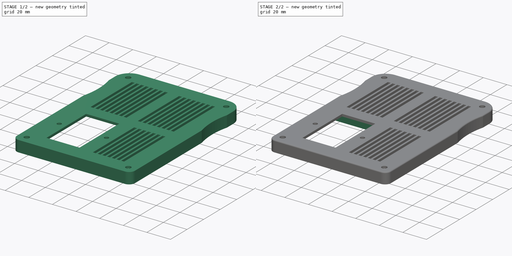
[diagram: build sequence overview — one tinted view per stage of 2, left to right]
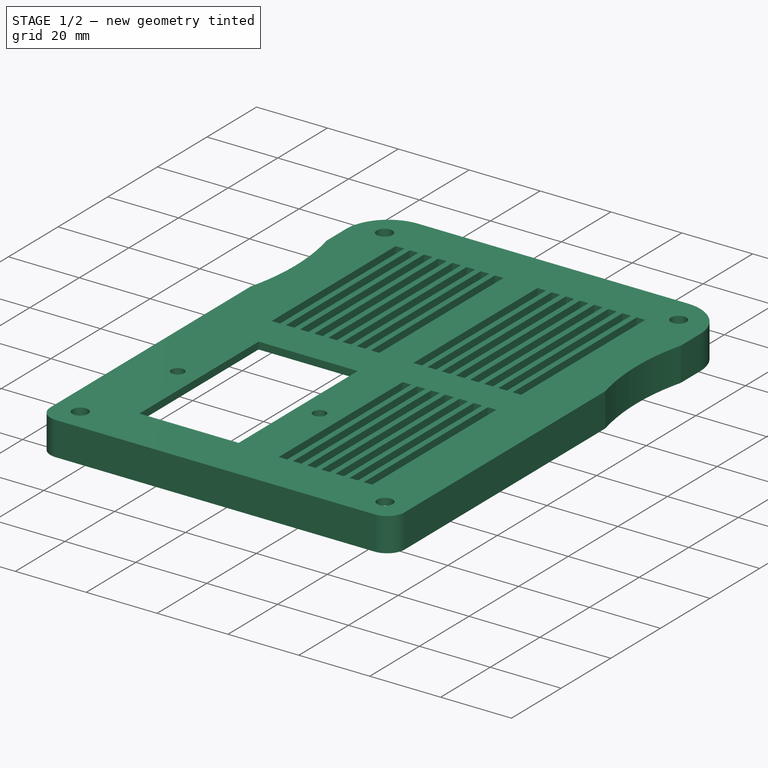
[diagram: stage 1 of 2 — iso view after this stage's code; geometry added in this stage tinted green]
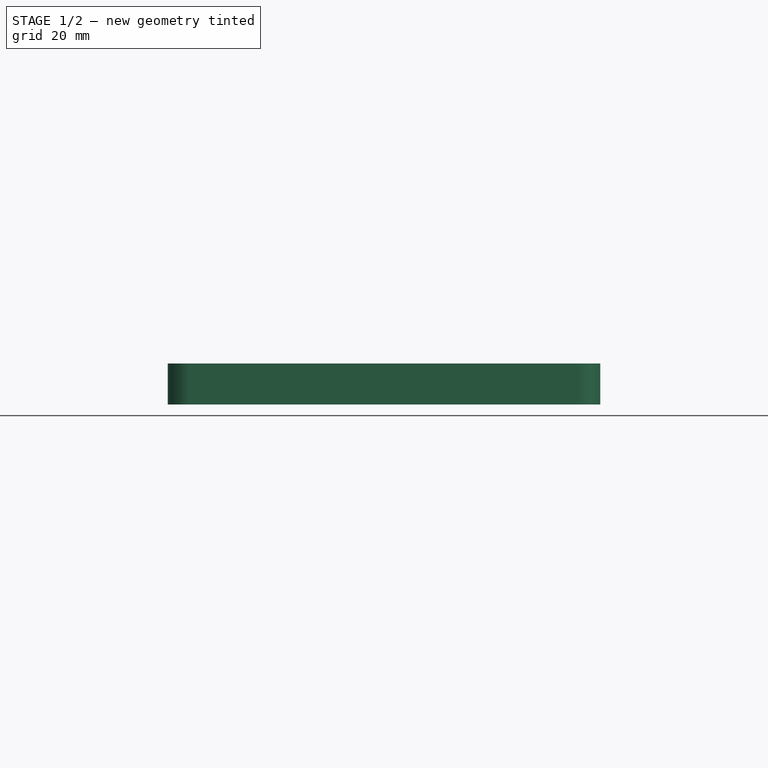
[diagram: stage 1 of 2 — front view after this stage's code; geometry added in this stage tinted green]
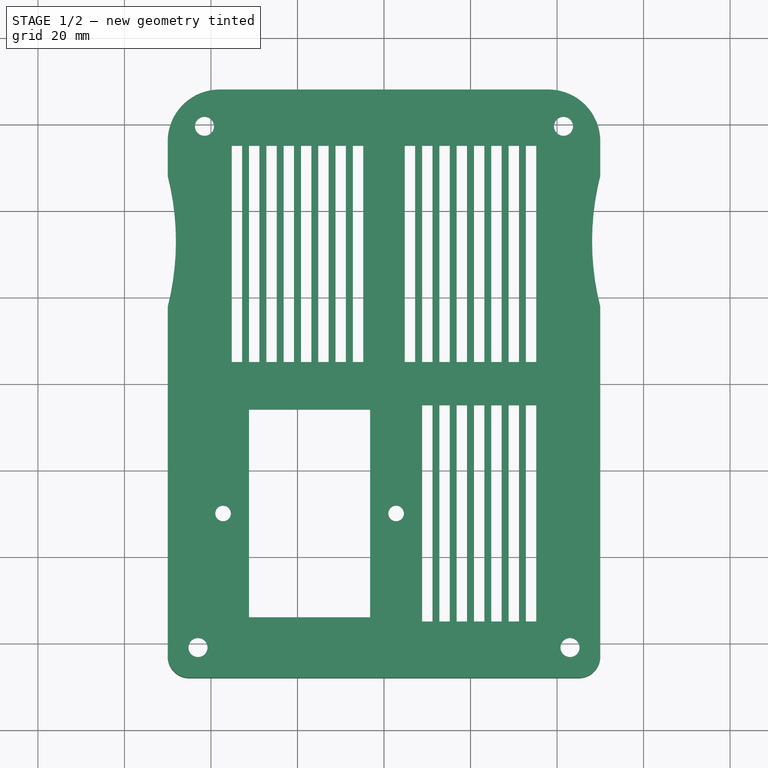
[diagram: stage 1 of 2 — top view after this stage's code; geometry added in this stage tinted green]
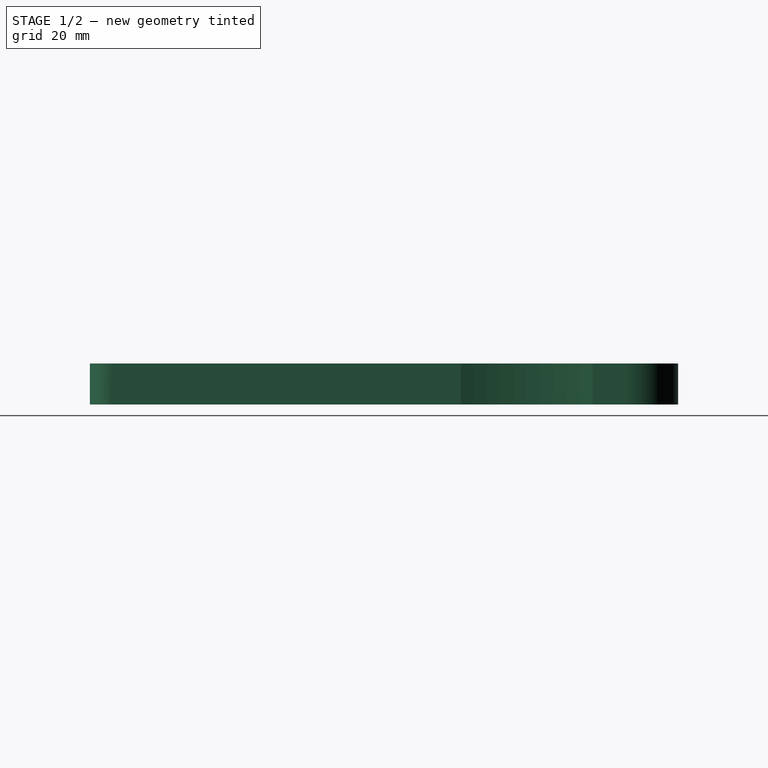
[diagram: stage 1 of 2 — right view after this stage's code; geometry added in this stage tinted green]
FCSTD DOCUMENT  (FreeCAD 0.18.4R)
Label: BakuBack
License: All rights reserved
LicenseURL: http://en.wikipedia.org/wiki/All_rights_reserved
objects: Sketcher::SketchObject×4, PartDesign::Pad×3, PartDesign::Fillet×1, PartDesign::Body×1
note: 12 computed .brp shape members not serialized (recipe doc carries the construction recipe); baked Part::Feature solids carry a one-line shape summary decoded from their .brp

FEATURE [Sketcher::SketchObject] Sketch
  MapMode = 5
  Support = -> [XY_Plane]
  sketch-geometry (66):
    g0: LineSegment StartX=-38 StartY=65 StartZ=0 EndX=38 EndY=65 EndZ=0
    g1: LineSegment StartX=45 StartY=-65 StartZ=0 EndX=-45 EndY=-65 EndZ=0
    g2: LineSegment StartX=-47 StartY=-63 StartZ=0 EndX=-47 EndY=17 EndZ=0
    g3: ArcOfCircle CenterX=-38 CenterY=56 CenterZ=0 NormalX=0 NormalY=0 NormalZ=1 AngleXU=0 Radius=9 StartAngle=1.5708 EndAngle=3.14159
    g4: ArcOfCircle CenterX=38 CenterY=56 CenterZ=0 NormalX=0 NormalY=0 NormalZ=1 AngleXU=0 Radius=9 StartAngle=3e-16 EndAngle=1.5708
    g5: ArcOfCircle CenterX=45 CenterY=-63 CenterZ=0 NormalX=0 NormalY=0 NormalZ=1 AngleXU=0 Radius=2 StartAngle=4.71239 EndAngle=6.28319
    g6: ArcOfCircle CenterX=-45 CenterY=-63 CenterZ=0 NormalX=0 NormalY=0 NormalZ=1 AngleXU=0 Radius=2 StartAngle=3.14159 EndAngle=4.71239
    g7: LineSegment [constr] StartX=-45 StartY=65 StartZ=0 EndX=-45 EndY=-65 EndZ=0
    g8: LineSegment [constr] StartX=45 StartY=65 StartZ=0 EndX=45 EndY=-65 EndZ=0
    g9: LineSegment [constr] StartX=0 StartY=65 StartZ=0 EndX=0 EndY=-65 EndZ=0
    g10: ArcOfCircle CenterX=-110 CenterY=33 CenterZ=0 NormalX=0 NormalY=0 NormalZ=1 AngleXU=0 Radius=65 StartAngle=6.03448 EndAngle=6.5319
    g11: ArcOfCircle CenterX=110 CenterY=33 CenterZ=0 NormalX=0 NormalY=0 NormalZ=1 AngleXU=0 Radius=65 StartAngle=2.89288 EndAngle=3.3903
    g12: LineSegment [constr] StartX=-110 StartY=33 StartZ=0 EndX=110 EndY=33 EndZ=0
    g13: LineSegment StartX=47 StartY=17 StartZ=0 EndX=47 EndY=-63 EndZ=0
    g14: Circle CenterX=-41.5 CenterY=59.5 CenterZ=0 NormalX=0 NormalY=0 NormalZ=1 AngleXU=0 Radius=2.2
    g15: Circle CenterX=41.5 CenterY=59.5 CenterZ=0 NormalX=0 NormalY=0 NormalZ=1 AngleXU=0 Radius=2.2
    g16: LineSegment [constr] StartX=-43 StartY=-61 StartZ=0 EndX=-47 EndY=-61 EndZ=0
    g17: LineSegment [constr] StartX=-43 StartY=-61 StartZ=0 EndX=-43 EndY=-65 EndZ=0
    g18: LineSegment [constr] StartX=-41.5 StartY=59.5 StartZ=0 EndX=-47 EndY=59.5 EndZ=0
    g19: LineSegment [constr] StartX=-41.5 StartY=59.5 StartZ=0 EndX=-41.5 EndY=65 EndZ=0
    g20: LineSegment [constr] StartX=-47 StartY=0 StartZ=0 EndX=47 EndY=0 EndZ=0
    g21: LineSegment StartX=-47 StartY=56 StartZ=0 EndX=-47 EndY=49 EndZ=0
    g22: LineSegment StartX=47 StartY=56 StartZ=0 EndX=47 EndY=49 EndZ=0
    g23: LineSegment [constr] StartX=-47 StartY=49 StartZ=0 EndX=-47 EndY=17 EndZ=0
    g24: LineSegment [constr] StartX=47 StartY=49 StartZ=0 EndX=47 EndY=17 EndZ=0
    g25: Circle CenterX=-43 CenterY=-61 CenterZ=0 NormalX=0 NormalY=0 NormalZ=1 AngleXU=0 Radius=2.2
    g26: Circle CenterX=43 CenterY=-61 CenterZ=0 NormalX=0 NormalY=0 NormalZ=1 AngleXU=0 Radius=2.2
    g27: LineSegment StartX=-110 StartY=33 StartZ=0 EndX=-47 EndY=49 EndZ=0
    g28: LineSegment StartX=-110 StartY=33 StartZ=0 EndX=-47 EndY=17 EndZ=0
    g29: LineSegment StartX=110 StartY=33 StartZ=0 EndX=47 EndY=49 EndZ=0
    g30: LineSegment StartX=110 StartY=33 StartZ=0 EndX=47 EndY=17 EndZ=0
    g31: ArcOfCircle CenterX=-38 CenterY=56 CenterZ=0 NormalX=0 NormalY=0 NormalZ=1 AngleXU=0 Radius=10 StartAngle=1.5708 EndAngle=3.14159
    g32: ArcOfCircle CenterX=38 CenterY=56 CenterZ=0 NormalX=0 NormalY=0 NormalZ=1 AngleXU=0 Radius=10 StartAngle=0 EndAngle=1.5708
    g33: ArcOfCircle CenterX=110 CenterY=33 CenterZ=0 NormalX=0 NormalY=0 NormalZ=1 AngleXU=0 Radius=63.9683 StartAngle=2.89288 EndAngle=3.3903
    g34: ArcOfCircle CenterX=-110 CenterY=33 CenterZ=0 NormalX=0 NormalY=0 NormalZ=1 AngleXU=0 Radius=63.9683 StartAngle=6.03448 EndAngle=6.5319
    g35: ArcOfCircle CenterX=-45 CenterY=-63 CenterZ=0 NormalX=0 NormalY=0 NormalZ=1 AngleXU=0 Radius=3 StartAngle=3.14159 EndAngle=4.71239
    g36: ArcOfCircle CenterX=45 CenterY=-63 CenterZ=0 NormalX=0 NormalY=0 NormalZ=1 AngleXU=0 Radius=3 StartAngle=4.71239 EndAngle=6.28319
    g37: LineSegment StartX=-48 StartY=56 StartZ=0 EndX=-48 EndY=48.746 EndZ=0
    g38: LineSegment StartX=-38 StartY=66 StartZ=0 EndX=38 EndY=66 EndZ=0
    g39: LineSegment StartX=48 StartY=56 StartZ=0 EndX=48 EndY=48.746 EndZ=0
    g40: LineSegment StartX=48 StartY=17.254 StartZ=0 EndX=48 EndY=-63 EndZ=0
    g41: LineSegment StartX=45 StartY=-66 StartZ=0 EndX=27.2361 EndY=-66 EndZ=0
    g42: LineSegment StartX=-48 StartY=17.254 StartZ=0 EndX=-48 EndY=-63 EndZ=0
    g43: ArcOfCircle CenterX=0 CenterY=-64 CenterZ=0 NormalX=0 NormalY=0 NormalZ=1 AngleXU=0 Radius=3 StartAngle=3.87132 EndAngle=5.55346
    g44: LineSegment [constr] StartX=-25 StartY=-64 StartZ=0 EndX=25 EndY=-64 EndZ=0
    g45: ArcOfCircle CenterX=25 CenterY=-64 CenterZ=0 NormalX=0 NormalY=0 NormalZ=1 AngleXU=0 Radius=3 StartAngle=3.87132 EndAngle=5.55346
    g46: ArcOfCircle CenterX=-25 CenterY=-64 CenterZ=0 NormalX=0 NormalY=0 NormalZ=1 AngleXU=0 Radius=3 StartAngle=3.87132 EndAngle=5.55346
    g47: LineSegment [constr] StartX=0 StartY=-67 StartZ=0 EndX=0 EndY=-66 EndZ=0
    g48: LineSegment StartX=-27.2361 StartY=-66 StartZ=0 EndX=-45 EndY=-66 EndZ=0
    g49: LineSegment [constr] StartX=-27.2361 StartY=-66 StartZ=0 EndX=-22.7639 EndY=-66 EndZ=0
    g50: LineSegment StartX=-2.23607 StartY=-66 StartZ=0 EndX=-22.7639 EndY=-66 EndZ=0
    g51: LineSegment [constr] StartX=-2.23607 StartY=-66 StartZ=0 EndX=2.23607 EndY=-66 EndZ=0
    g52: LineSegment StartX=22.7639 StartY=-66 StartZ=0 EndX=2.23607 EndY=-66 EndZ=0
    g53: LineSegment [constr] StartX=22.7639 StartY=-66 StartZ=0 EndX=27.2361 EndY=-66 EndZ=0
    g54: ArcOfCircle CenterX=-38 CenterY=56 CenterZ=0 NormalX=0 NormalY=0 NormalZ=1 AngleXU=0 Radius=12 StartAngle=1.5708 EndAngle=3.14159
    g55: ArcOfCircle CenterX=-110 CenterY=33 CenterZ=0 NormalX=0 NormalY=0 NormalZ=1 AngleXU=0 Radius=61.9048 StartAngle=6.03448 EndAngle=6.5319
    g56: ArcOfCircle CenterX=-45 CenterY=-63 CenterZ=0 NormalX=0 NormalY=0 NormalZ=1 AngleXU=0 Radius=5 StartAngle=3.1416 EndAngle=4.71239
    g57: ArcOfCircle CenterX=45 CenterY=-63 CenterZ=0 NormalX=0 NormalY=0 NormalZ=1 AngleXU=0 Radius=5 StartAngle=4.71239 EndAngle=6.28319
    g58: ArcOfCircle CenterX=110 CenterY=33 CenterZ=0 NormalX=0 NormalY=0 NormalZ=1 AngleXU=0 Radius=61.9048 StartAngle=2.89288 EndAngle=3.3903
    g59: ArcOfCircle CenterX=38 CenterY=56 CenterZ=0 NormalX=0 NormalY=0 NormalZ=1 AngleXU=0 Radius=12 StartAngle=1e-16 EndAngle=1.5708
    g60: LineSegment StartX=-38 StartY=68 StartZ=0 EndX=38 EndY=68 EndZ=0
    g61: LineSegment StartX=-50 StartY=56 StartZ=0 EndX=-50 EndY=48.2381 EndZ=0
    g62: LineSegment StartX=-50 StartY=17.7619 StartZ=0 EndX=-50 EndY=-63 EndZ=0
    g63: LineSegment StartX=-45 StartY=-68 StartZ=0 EndX=45 EndY=-68 EndZ=0
    g64: LineSegment StartX=50 StartY=-63 StartZ=0 EndX=50 EndY=17.7619 EndZ=0
    g65: LineSegment StartX=50 StartY=56 StartZ=0 EndX=50 EndY=48.2381 EndZ=0
  constraints (168):
    c: Horizontal(g0)
    c: Vertical(g2)
    c: Tangent(g0,g3) = 1.5708
    c: Tangent(g0,g4) = 1.5708
    c: Tangent(g1,g5) = 1.5708
    c: Tangent(g1,g6) = 1.5708
    c: Tangent(g2,g6) = 1.5708
    c: Equal(g3,g4)
    c: Equal(g5,g6)
    c: DistanceY(g1,g0) = 130
    c: Radius(g3) = 9
    c: PointOnObject(g7,g0)
    c: PointOnObject(g7,g1)
    c: Vertical(g7)
    c: PointOnObject(g8,g1)
    c: Vertical(g8)
    c: DistanceX(g7,g8) = 90
    c: PointOnObject(g9,g0)
    c: PointOnObject(g9,g1)
    c: Symmetric(g7,g8,g9)
    c: Equal(g11,g10)
    c: Coincident(g12,g10)
    c: Coincident(g12,g11)
    c: Symmetric(g11,g10,g9)
    c: Tangent(g10,g7)
    c: Tangent(g5,g13) = 1.5708
    c: Radius(g10) = 65
    c: DistanceY(g10,g0) = 32
    c: Equal(g14,g15)
    c: Symmetric(g14,g15,g9)
    c: PointOnObject(g16,g2)
    c: Horizontal(g16)
    c: Vertical(g17)
    c: DistanceX(g16,g16) = 4
    c: Equal(g16,g17)
    c: Coincident(g18,g14)
    c: Horizontal(g18)
    c: Coincident(g19,g14)
    c: PointOnObject(g19,g0)
    c: Vertical(g19)
    c: Equal(g18,g19)
    c: DistanceX(g18,g18) = 5.5
    c: Symmetric(g9,g9,g-1)
    c: PointOnObject(g20,g2)
    c: PointOnObject(g20,g13)
    c: Symmetric(g9,g9,g20)
    c: Vertical(g13)
    c: DistanceX(g3,g4) = 94
    c: Vertical(g21)
    c: Vertical(g22)
    c: Coincident(g22,g11)
    c: Coincident(g10,g21)
    c: Coincident(g2,g10)
    c: Coincident(g11,g13)
    c: PointOnObject(g18,g21)
    c: Symmetric(g0,g0,g9)
    c: Tangent(g4,g22) = 1.5708
    c: Tangent(g3,g21) = -1.5708
    c: Coincident(g23,g10)
    c: Coincident(g23,g2)
    c: Vertical(g23)
    c: Coincident(g24,g11)
    c: Coincident(g24,g11)
    c: Horizontal(g1)
    c: Vertical(g24)
    c: Radius(g6) = 2
    c: Coincident(g16,g17)
    c: Symmetric(g26,g25,g9)
    c: Equal(g25,g26)
    c: Equal(g15,g26)
    c: Coincident(g25,g16)
    c: PointOnObject(g17,g1)
    c: Radius(g25) = 2.2
    c: Coincident(g27,g10)
    c: Coincident(g27,g10)
    c: Coincident(g28,g10)
    c: Coincident(g28,g2)
    c: Coincident(g29,g11)
    c: Coincident(g29,g11)
    c: Coincident(g30,g11)
    c: Coincident(g30,g11)
    c: Coincident(g31,g3)
    c: Coincident(g32,g4)
    c: Coincident(g33,g11)
    c: PointOnObject(g33,g29)
    c: PointOnObject(g33,g30)
    c: Coincident(g34,g10)
    c: PointOnObject(g34,g27)
    c: PointOnObject(g34,g28)
    c: Coincident(g35,g6)
    c: Coincident(g36,g5)
    c: Coincident(g37,g34)
    c: Vertical(g37)
    c: Horizontal(g38)
    c: Tangent(g31,g38) = 1.5708
    c: Tangent(g32,g38) = 1.5708
    c: Coincident(g39,g33)
    c: Vertical(g39)
    c: Tangent(g32,g39) = 1.5708
    c: Coincident(g40,g33)
    c: Vertical(g40)
    c: Tangent(g36,g40) = 1.5708
    c: Tangent(g36,g41) = 1.5708
    c: Coincident(g42,g34)
    c: Tangent(g31,g37) = -1.5708
    c: Coincident(g35,g42)
    c: DistanceX(g5,g36) = 1
    c: Vertical(g42)
    c: PointOnObject(g43,g9)
    c: Horizontal(g44)
    c: Symmetric(g44,g44,g43)
    c: Coincident(g45,g44)
    c: Coincident(g46,g44)
    c: Equal(g46,g43)
    c: Equal(g43,g45)
    c: Radius(g43) = 3
    c: DistanceX(g44,g44) = 50
    c: PointOnObject(g47,g43)
    c: Vertical(g47)
    c: Tangent(g41,g48)
    c: Horizontal(g49)
    c: Coincident(g49,g50)
    c: Coincident(g49,g46)
    c: Coincident(g49,g48)
    c: Coincident(g50,g46)
    c: Tangent(g35,g48) = 1.5708
    c: Tangent(g41,g50)
    c: Coincident(g52,g43)
    c: Coincident(g43,g50)
    c: Coincident(g51,g43)
    c: Coincident(g51,g52)
    c: PointOnObject(g47,g51)
    c: DistanceY(g47,g47) = 1
    c: PointOnObject(g47,g9)
    c: Tangent(g41,g52)
    c: Coincident(g45,g52)
    c: Coincident(g41,g45)
    c: Coincident(g53,g45)
    c: Coincident(g53,g41)
    c: Coincident(g54,g3)
    c: Coincident(g55,g10)
    c: PointOnObject(g55,g27)
    c: PointOnObject(g55,g28)
    c: Coincident(g56,g6)
    c: Coincident(g57,g5)
    c: Coincident(g58,g11)
    c: PointOnObject(g58,g29)
    c: PointOnObject(g58,g30)
    c: Coincident(g59,g4)
    c: Horizontal(g60)
    c: Tangent(g54,g60) = 1.5708
    c: Tangent(g59,g60) = 1.5708
    c: Coincident(g61,g55)
    c: Vertical(g61)
    c: Tangent(g54,g61) = -1.5708
    c: Coincident(g62,g55)
    c: Coincident(g62,g56)
    c: Vertical(g62)
    c: Horizontal(g63)
    c: Coincident(g64,g58)
    c: Vertical(g64)
    c: Coincident(g65,g58)
    c: Vertical(g65)
    c: Tangent(g59,g65) = 1.5708
    c: Tangent(g57,g64) = -1.5708
    c: Tangent(g57,g63) = -1.5708
    c: Tangent(g56,g63) = -1.5708
    c: DistanceX(g36,g57) = 2
FEATURE [Sketcher::SketchObject] Sketch001
  ExternalGeometry = -> [Sketch]
  MapMode = 5
  sketch-geometry (150):
    g0: LineSegment [constr] StartX=0 StartY=68 StartZ=0 EndX=0 EndY=-68 EndZ=0
    g1: LineSegment StartX=-31.2 StartY=-6 StartZ=0 EndX=-3.2 EndY=-6 EndZ=0
    g2: LineSegment StartX=-3.2 StartY=-6 StartZ=0 EndX=-3.2 EndY=-54 EndZ=0
    g3: LineSegment StartX=-3.2 StartY=-54 StartZ=0 EndX=-31.2 EndY=-54 EndZ=0
    g4: LineSegment StartX=-31.2 StartY=-54 StartZ=0 EndX=-31.2 EndY=-6 EndZ=0
    g5: LineSegment [constr] StartX=-17.2 StartY=-6 StartZ=0 EndX=-17.2 EndY=-54 EndZ=0
    g6: LineSegment [constr] StartX=-31.2 StartY=-30 StartZ=0 EndX=-3.2 EndY=-30 EndZ=0
    g7: Circle CenterX=-37.2 CenterY=-30 CenterZ=0 NormalX=0 NormalY=0 NormalZ=1 AngleXU=0 Radius=1.8
    g8: Circle CenterX=2.8 CenterY=-30 CenterZ=0 NormalX=0 NormalY=0 NormalZ=1 AngleXU=0 Radius=1.8
    g9: LineSegment StartX=-35.2 StartY=55 StartZ=0 EndX=-32.8 EndY=55 EndZ=0
    g10: LineSegment StartX=-32.8 StartY=55 StartZ=0 EndX=-32.8 EndY=5 EndZ=0
    g11: LineSegment StartX=-32.8 StartY=5 StartZ=0 EndX=-35.2 EndY=5 EndZ=0
    g12: LineSegment StartX=-35.2 StartY=5 StartZ=0 EndX=-35.2 EndY=55 EndZ=0
    g13: LineSegment StartX=-31.2 StartY=55 StartZ=0 EndX=-28.8 EndY=55 EndZ=0
    g14: LineSegment StartX=-28.8 StartY=55 StartZ=0 EndX=-28.8 EndY=5 EndZ=0
    g15: LineSegment StartX=-28.8 StartY=5 StartZ=0 EndX=-31.2 EndY=5 EndZ=0
    g16: LineSegment StartX=-31.2 StartY=5 StartZ=0 EndX=-31.2 EndY=55 EndZ=0
    g17: LineSegment [constr] StartX=-32.8 StartY=55 StartZ=0 EndX=-31.2 EndY=55 EndZ=0
    g18: LineSegment StartX=-24.8 StartY=5 StartZ=0 EndX=-27.2 EndY=5 EndZ=0
    g19: LineSegment StartX=-27.2 StartY=5 StartZ=0 EndX=-27.2 EndY=55 EndZ=0
    g20: LineSegment StartX=-24.8 StartY=55 StartZ=0 EndX=-24.8 EndY=5 EndZ=0
    g21: LineSegment StartX=-27.2 StartY=55 StartZ=0 EndX=-24.8 EndY=55 EndZ=0
    g22: LineSegment [constr] StartX=-28.8 StartY=55 StartZ=0 EndX=-27.2 EndY=55 EndZ=0
    g23: LineSegment StartX=-20.8 StartY=5 StartZ=0 EndX=-23.2 EndY=5 EndZ=0
    g24: LineSegment StartX=-23.2 StartY=5 StartZ=0 EndX=-23.2 EndY=55 EndZ=0
    g25: LineSegment StartX=-20.8 StartY=55 StartZ=0 EndX=-20.8 EndY=5 EndZ=0
    g26: LineSegment StartX=-23.2 StartY=55 StartZ=0 EndX=-20.8 EndY=55 EndZ=0
    g27: LineSegment [constr] StartX=-24.8 StartY=55 StartZ=0 EndX=-23.2 EndY=55 EndZ=0
    g28: LineSegment StartX=-16.8 StartY=5 StartZ=0 EndX=-19.2 EndY=5 EndZ=0
    g29: LineSegment StartX=-19.2 StartY=5 StartZ=0 EndX=-19.2 EndY=55 EndZ=0
    g30: LineSegment StartX=-16.8 StartY=55 StartZ=0 EndX=-16.8 EndY=5 EndZ=0
    g31: LineSegment StartX=-19.2 StartY=55 StartZ=0 EndX=-16.8 EndY=55 EndZ=0
    g32: LineSegment [constr] StartX=-20.8 StartY=55 StartZ=0 EndX=-19.2 EndY=55 EndZ=0
    g33: LineSegment StartX=-12.8 StartY=5 StartZ=0 EndX=-15.2 EndY=5 EndZ=0
    g34: LineSegment StartX=-15.2 StartY=5 StartZ=0 EndX=-15.2 EndY=55 EndZ=0
    g35: LineSegment StartX=-12.8 StartY=55 StartZ=0 EndX=-12.8 EndY=5 EndZ=0
    g36: LineSegment StartX=-15.2 StartY=55 StartZ=0 EndX=-12.8 EndY=55 EndZ=0
    g37: LineSegment [constr] StartX=-16.8 StartY=55 StartZ=0 EndX=-15.2 EndY=55 EndZ=0
    g38: LineSegment StartX=-8.8 StartY=5 StartZ=0 EndX=-11.2 EndY=5 EndZ=0
    g39: LineSegment StartX=-11.2 StartY=5 StartZ=0 EndX=-11.2 EndY=55 EndZ=0
    g40: LineSegment StartX=-8.8 StartY=55 StartZ=0 EndX=-8.8 EndY=5 EndZ=0
    g41: LineSegment StartX=-11.2 StartY=55 StartZ=0 EndX=-8.8 EndY=55 EndZ=0
    g42: LineSegment [constr] StartX=-12.8 StartY=55 StartZ=0 EndX=-11.2 EndY=55 EndZ=0
    g43: LineSegment StartX=-4.8 StartY=5 StartZ=0 EndX=-7.2 EndY=5 EndZ=0
    g44: LineSegment StartX=-7.2 StartY=5 StartZ=0 EndX=-7.2 EndY=55 EndZ=0
    g45: LineSegment StartX=-4.8 StartY=55 StartZ=0 EndX=-4.8 EndY=5 EndZ=0
    g46: LineSegment StartX=-7.2 StartY=55 StartZ=0 EndX=-4.8 EndY=55 EndZ=0
    g47: LineSegment [constr] StartX=-8.8 StartY=55 StartZ=0 EndX=-7.2 EndY=55 EndZ=0
    g48: LineSegment [constr] StartX=-0.8 StartY=5 StartZ=0 EndX=-3.2 EndY=5 EndZ=0
    g49: LineSegment [constr] StartX=-3.2 StartY=5 StartZ=0 EndX=-3.2 EndY=55 EndZ=0
    g50: LineSegment [constr] StartX=-0.8 StartY=55 StartZ=0 EndX=-0.8 EndY=5 EndZ=0
    g51: LineSegment [constr] StartX=-3.2 StartY=55 StartZ=0 EndX=-0.8 EndY=55 EndZ=0
    g52: LineSegment [constr] StartX=-4.8 StartY=55 StartZ=0 EndX=-3.2 EndY=55 EndZ=0
    g53: LineSegment [constr] StartX=3.2 StartY=5 StartZ=0 EndX=0.8 EndY=5 EndZ=0
    g54: LineSegment [constr] StartX=0.8 StartY=5 StartZ=0 EndX=0.8 EndY=55 EndZ=0
    g55: LineSegment [constr] StartX=3.2 StartY=55 StartZ=0 EndX=3.2 EndY=5 EndZ=0
    g56: LineSegment [constr] StartX=0.8 StartY=55 StartZ=0 EndX=3.2 EndY=55 EndZ=0
    g57: LineSegment [constr] StartX=-0.8 StartY=55 StartZ=0 EndX=0.8 EndY=55 EndZ=0
    g58: LineSegment StartX=7.2 StartY=5 StartZ=0 EndX=4.8 EndY=5 EndZ=0
    g59: LineSegment StartX=4.8 StartY=5 StartZ=0 EndX=4.8 EndY=55 EndZ=0
    g60: LineSegment StartX=7.2 StartY=55 StartZ=0 EndX=7.2 EndY=5 EndZ=0
    g61: LineSegment StartX=4.8 StartY=55 StartZ=0 EndX=7.2 EndY=55 EndZ=0
    g62: LineSegment [constr] StartX=3.2 StartY=55 StartZ=0 EndX=4.8 EndY=55 EndZ=0
    g63: LineSegment StartX=11.2 StartY=5 StartZ=0 EndX=8.8 EndY=5 EndZ=0
    g64: LineSegment StartX=8.8 StartY=5 StartZ=0 EndX=8.8 EndY=55 EndZ=0
    g65: LineSegment StartX=11.2 StartY=55 StartZ=0 EndX=11.2 EndY=5 EndZ=0
    g66: LineSegment StartX=8.8 StartY=55 StartZ=0 EndX=11.2 EndY=55 EndZ=0
    g67: LineSegment [constr] StartX=7.2 StartY=55 StartZ=0 EndX=8.8 EndY=55 EndZ=0
    g68: LineSegment StartX=15.2 StartY=5 StartZ=0 EndX=12.8 EndY=5 EndZ=0
    g69: LineSegment StartX=12.8 StartY=5 StartZ=0 EndX=12.8 EndY=55 EndZ=0
    g70: LineSegment StartX=15.2 StartY=55 StartZ=0 EndX=15.2 EndY=5 EndZ=0
    g71: LineSegment StartX=12.8 StartY=55 StartZ=0 EndX=15.2 EndY=55 EndZ=0
    g72: LineSegment [constr] StartX=11.2 StartY=55 StartZ=0 EndX=12.8 EndY=55 EndZ=0
    g73: LineSegment StartX=19.2 StartY=5 StartZ=0 EndX=16.8 EndY=5 EndZ=0
    g74: LineSegment StartX=16.8 StartY=5 StartZ=0 EndX=16.8 EndY=55 EndZ=0
    g75: LineSegment StartX=19.2 StartY=55 StartZ=0 EndX=19.2 EndY=5 EndZ=0
    g76: LineSegment StartX=16.8 StartY=55 StartZ=0 EndX=19.2 EndY=55 EndZ=0
    g77: LineSegment [constr] StartX=15.2 StartY=55 StartZ=0 EndX=16.8 EndY=55 EndZ=0
    g78: LineSegment StartX=23.2 StartY=5 StartZ=0 EndX=20.8 EndY=5 EndZ=0
    g79: LineSegment StartX=20.8 StartY=5 StartZ=0 EndX=20.8 EndY=55 EndZ=0
    g80: LineSegment StartX=23.2 StartY=55 StartZ=0 EndX=23.2 EndY=5 EndZ=0
    g81: LineSegment StartX=20.8 StartY=55 StartZ=0 EndX=23.2 EndY=55 EndZ=0
    g82: LineSegment [constr] StartX=19.2 StartY=55 StartZ=0 EndX=20.8 EndY=55 EndZ=0
    g83: LineSegment StartX=27.2 StartY=5 StartZ=0 EndX=24.8 EndY=5 EndZ=0
    g84: LineSegment StartX=24.8 StartY=5 StartZ=0 EndX=24.8 EndY=55 EndZ=0
    g85: LineSegment StartX=27.2 StartY=55 StartZ=0 EndX=27.2 EndY=5 EndZ=0
    g86: LineSegment StartX=24.8 StartY=55 StartZ=0 EndX=27.2 EndY=55 EndZ=0
    g87: LineSegment [constr] StartX=23.2 StartY=55 StartZ=0 EndX=24.8 EndY=55 EndZ=0
    g88: LineSegment StartX=31.2 StartY=5 StartZ=0 EndX=28.8 EndY=5 EndZ=0
    g89: LineSegment StartX=28.8 StartY=5 StartZ=0 EndX=28.8 EndY=55 EndZ=0
    g90: LineSegment StartX=31.2 StartY=55 StartZ=0 EndX=31.2 EndY=5 EndZ=0
    g91: LineSegment StartX=28.8 StartY=55 StartZ=0 EndX=31.2 EndY=55 EndZ=0
    g92: LineSegment [constr] StartX=27.2 StartY=55 StartZ=0 EndX=28.8 EndY=55 EndZ=0
    g93: LineSegment StartX=35.2 StartY=5 StartZ=0 EndX=32.8 EndY=5 EndZ=0
    g94: LineSegment StartX=32.8 StartY=5 StartZ=0 EndX=32.8 EndY=55 EndZ=0
    g95: LineSegment StartX=35.2 StartY=55 StartZ=0 EndX=35.2 EndY=5 EndZ=0
    g96: LineSegment StartX=32.8 StartY=55 StartZ=0 EndX=35.2 EndY=55 EndZ=0
    g97: LineSegment [constr] StartX=31.2 StartY=55 StartZ=0 EndX=32.8 EndY=55 EndZ=0
    g98: LineSegment [constr] StartX=-50 StartY=0 StartZ=0 EndX=50 EndY=0 EndZ=0
    g99: LineSegment StartX=8.8 StartY=-5 StartZ=0 EndX=11.2 EndY=-5 EndZ=0
    g100: LineSegment StartX=11.2 StartY=-5 StartZ=0 EndX=11.2 EndY=-55 EndZ=0
    g101: LineSegment StartX=11.2 StartY=-55 StartZ=0 EndX=8.8 EndY=-55 EndZ=0
    g102: LineSegment StartX=8.8 StartY=-55 StartZ=0 EndX=8.8 EndY=-5 EndZ=0
    g103: LineSegment [constr] StartX=11.2 StartY=-5 StartZ=0 EndX=12.8 EndY=-5 EndZ=0
    g104: LineSegment StartX=15.2 StartY=-55 StartZ=0 EndX=12.8 EndY=-55 EndZ=0
    g105: LineSegment StartX=15.2 StartY=-5 StartZ=0 EndX=15.2 EndY=-55 EndZ=0
    g106: LineSegment StartX=12.8 StartY=-55 StartZ=0 EndX=12.8 EndY=-5 EndZ=0
    g107: LineSegment [constr] StartX=15.2 StartY=-5 StartZ=0 EndX=16.8 EndY=-5 EndZ=0
    g108: LineSegment StartX=12.8 StartY=-5 StartZ=0 EndX=15.2 EndY=-5 EndZ=0
    g109: LineSegment StartX=19.2 StartY=-55 StartZ=0 EndX=16.8 EndY=-55 EndZ=0
    g110: LineSegment StartX=19.2 StartY=-5 StartZ=0 EndX=19.2 EndY=-55 EndZ=0
    g111: LineSegment StartX=16.8 StartY=-55 StartZ=0 EndX=16.8 EndY=-5 EndZ=0
    g112: LineSegment [constr] StartX=19.2 StartY=-5 StartZ=0 EndX=20.8 EndY=-5 EndZ=0
    g113: LineSegment StartX=16.8 StartY=-5 StartZ=0 EndX=19.2 EndY=-5 EndZ=0
    g114: LineSegment StartX=23.2 StartY=-55 StartZ=0 EndX=20.8 EndY=-55 EndZ=0
    g115: LineSegment StartX=23.2 StartY=-5 StartZ=0 EndX=23.2 EndY=-55 EndZ=0
    g116: LineSegment StartX=20.8 StartY=-55 StartZ=0 EndX=20.8 EndY=-5 EndZ=0
    g117: LineSegment [constr] StartX=23.2 StartY=-5 StartZ=0 EndX=24.8 EndY=-5 EndZ=0
    g118: LineSegment StartX=20.8 StartY=-5 StartZ=0 EndX=23.2 EndY=-5 EndZ=0
    g119: LineSegment StartX=27.2 StartY=-55 StartZ=0 EndX=24.8 EndY=-55 EndZ=0
    g120: LineSegment StartX=27.2 StartY=-5 StartZ=0 EndX=27.2 EndY=-55 EndZ=0
    g121: LineSegment StartX=24.8 StartY=-55 StartZ=0 EndX=24.8 EndY=-5 EndZ=0
    g122: LineSegment [constr] StartX=27.2 StartY=-5 StartZ=0 EndX=28.8 EndY=-5 EndZ=0
    g123: LineSegment StartX=24.8 StartY=-5 StartZ=0 EndX=27.2 EndY=-5 EndZ=0
    g124: LineSegment StartX=31.2 StartY=-55 StartZ=0 EndX=28.8 EndY=-55 EndZ=0
    g125: LineSegment StartX=31.2 StartY=-5 StartZ=0 EndX=31.2 EndY=-55 EndZ=0
    g126: LineSegment StartX=28.8 StartY=-55 StartZ=0 EndX=28.8 EndY=-5 EndZ=0
    g127: LineSegment [constr] StartX=31.2 StartY=-5 StartZ=0 EndX=32.8 EndY=-5 EndZ=0
    g128: LineSegment StartX=28.8 StartY=-5 StartZ=0 EndX=31.2 EndY=-5 EndZ=0
    g129: LineSegment StartX=35.2 StartY=-55 StartZ=0 EndX=32.8 EndY=-55 EndZ=0
    g130: LineSegment StartX=35.2 StartY=-5 StartZ=0 EndX=35.2 EndY=-55 EndZ=0
    g131: LineSegment StartX=32.8 StartY=-55 StartZ=0 EndX=32.8 EndY=-5 EndZ=0
    g132: LineSegment StartX=32.8 StartY=-5 StartZ=0 EndX=35.2 EndY=-5 EndZ=0
    g133: GeomPoint X=8.8 Y=-30 Z=0
    g134: ArcOfCircle CenterX=-38 CenterY=56 CenterZ=0 NormalX=0 NormalY=0 NormalZ=1 AngleXU=0 Radius=12 StartAngle=1.5708 EndAngle=3.14159
    g135: ArcOfCircle CenterX=38 CenterY=56 CenterZ=0 NormalX=0 NormalY=0 NormalZ=1 AngleXU=0 Radius=12 StartAngle=0 EndAngle=1.5708
    g136: ArcOfCircle CenterX=110 CenterY=33 CenterZ=0 NormalX=0 NormalY=0 NormalZ=1 AngleXU=0 Radius=61.9048 StartAngle=2.89288 EndAngle=3.3903
    g137: ArcOfCircle CenterX=45 CenterY=-63 CenterZ=0 NormalX=0 NormalY=0 NormalZ=1 AngleXU=0 Radius=5 StartAngle=4.71239 EndAngle=6.28319
    g138: ArcOfCircle CenterX=-45 CenterY=-63 CenterZ=0 NormalX=0 NormalY=0 NormalZ=1 AngleXU=0 Radius=5 StartAngle=3.1416 EndAngle=4.71239
    g139: LineSegment StartX=-45 StartY=-68 StartZ=0 EndX=45 EndY=-68 EndZ=0
    g140: ArcOfCircle CenterX=-110 CenterY=33 CenterZ=0 NormalX=0 NormalY=0 NormalZ=1 AngleXU=0 Radius=61.9048 StartAngle=6.03448 EndAngle=6.5319
    g141: LineSegment StartX=-50 StartY=17.7619 StartZ=0 EndX=-50 EndY=-63 EndZ=0
    g142: LineSegment StartX=50 StartY=17.7619 StartZ=0 EndX=50 EndY=-63 EndZ=0
    g143: LineSegment StartX=-50 StartY=56 StartZ=0 EndX=-50 EndY=48.2381 EndZ=0
    g144: LineSegment StartX=-38 StartY=68 StartZ=0 EndX=38 EndY=68 EndZ=0
    g145: LineSegment StartX=50 StartY=56 StartZ=0 EndX=50 EndY=48.2381 EndZ=0
    g146: Circle CenterX=-41.5 CenterY=59.5 CenterZ=0 NormalX=0 NormalY=0 NormalZ=1 AngleXU=0 Radius=2.2
    g147: Circle CenterX=41.5 CenterY=59.5 CenterZ=0 NormalX=0 NormalY=0 NormalZ=1 AngleXU=0 Radius=2.2
    g148: Circle CenterX=43 CenterY=-61 CenterZ=0 NormalX=0 NormalY=0 NormalZ=1 AngleXU=0 Radius=2.2
    g149: Circle CenterX=-43 CenterY=-61 CenterZ=0 NormalX=0 NormalY=0 NormalZ=1 AngleXU=0 Radius=2.2
  constraints (411):
    c: Symmetric(g0,g0,g-1)
    c: Coincident(g1,g2)
    c: Coincident(g2,g3)
    c: Coincident(g3,g4)
    c: Coincident(g4,g1)
    c: Horizontal(g1)
    c: Horizontal(g3)
    c: Vertical(g2)
    c: Vertical(g4)
    c: DistanceX(g1,g1) = 28
    c: DistanceY(g4,g4) = 48
    c: PointOnObject(g5,g1)
    c: PointOnObject(g5,g3)
    c: PointOnObject(g6,g4)
    c: PointOnObject(g6,g2)
    c: Symmetric(g1,g1,g5)
    c: Symmetric(g1,g3,g6)
    c: PointOnObject(g8,g6)
    c: Symmetric(g7,g8,g5)
    c: Equal(g7,g8)
    c: Radius(g7) = 1.8
    c: DistanceX(g7,g8) = 40
    c: Coincident(g9,g10)
    c: Coincident(g10,g11)
    c: Coincident(g11,g12)
    c: Coincident(g12,g9)
    c: Horizontal(g9)
    c: Horizontal(g11)
    c: Vertical(g10)
    c: Vertical(g12)
    c: Coincident(g13,g14)
    c: Coincident(g14,g15)
    c: Coincident(g15,g16)
    c: Coincident(g16,g13)
    c: Horizontal(g13)
    c: Horizontal(g15)
    c: Vertical(g14)
    c: Vertical(g16)
    c: Coincident(g17,g9)
    c: Coincident(g17,g13)
    c: Horizontal(g17)
    c: Equal(g13,g9)
    c: Equal(g10,g16)
    c: DistanceX(g9,g9) = 2.4
    c: DistanceX(g17,g17) = 1.6
    c: DistanceY(g12,g12) = 50
    c: Coincident(g21,g20)
    c: Coincident(g20,g18)
    c: Coincident(g18,g19)
    c: Coincident(g19,g21)
    c: Horizontal(g21)
    c: Horizontal(g18)
    c: Vertical(g20)
    c: Vertical(g19)
    c: Coincident(g22,g21)
    c: Horizontal(g22)
    c: Coincident(g26,g25)
    c: Coincident(g25,g23)
    c: Coincident(g23,g24)
    c: Coincident(g24,g26)
    c: Horizontal(g26)
    c: Horizontal(g23)
    c: Vertical(g25)
    c: Vertical(g24)
    c: Coincident(g27,g26)
    c: Horizontal(g27)
    c: Coincident(g31,g30)
    c: Coincident(g30,g28)
    c: Coincident(g28,g29)
    c: Coincident(g29,g31)
    c: Horizontal(g31)
    c: Horizontal(g28)
    c: Vertical(g30)
    c: Vertical(g29)
    c: Coincident(g32,g31)
    c: Horizontal(g32)
    c: Coincident(g36,g35)
    c: Coincident(g35,g33)
    c: Coincident(g33,g34)
    c: Coincident(g34,g36)
    c: Horizontal(g36)
    c: Horizontal(g33)
    c: Vertical(g35)
    c: Vertical(g34)
    c: Coincident(g37,g36)
    c: Horizontal(g37)
    c: Coincident(g41,g40)
    c: Coincident(g40,g38)
    c: Coincident(g38,g39)
    c: Coincident(g39,g41)
    c: Horizontal(g41)
    c: Horizontal(g38)
    c: Vertical(g40)
    c: Vertical(g39)
    c: Coincident(g42,g41)
    c: Horizontal(g42)
    c: Coincident(g46,g45)
    c: Coincident(g45,g43)
    c: Coincident(g43,g44)
    c: Coincident(g44,g46)
    c: Horizontal(g46)
    c: Horizontal(g43)
    c: Vertical(g45)
    c: Vertical(g44)
    c: Coincident(g47,g46)
    c: Horizontal(g47)
    c: Coincident(g51,g50)
    c: Coincident(g50,g48)
    c: Coincident(g48,g49)
    c: Coincident(g49,g51)
    c: Horizontal(g51)
    c: Horizontal(g48)
    c: Vertical(g50)
    c: Vertical(g49)
    c: Coincident(g52,g51)
    c: Horizontal(g52)
    c: Coincident(g56,g55)
    c: Coincident(g55,g53)
    c: Coincident(g53,g54)
    c: Coincident(g54,g56)
    c: Horizontal(g56)
    c: Horizontal(g53)
    c: Vertical(g55)
    c: Vertical(g54)
    c: Coincident(g57,g56)
    c: Coincident(g61,g60)
    c: Coincident(g60,g58)
    c: Coincident(g58,g59)
    c: Coincident(g59,g61)
    c: Horizontal(g61)
    c: Horizontal(g58)
    c: Vertical(g60)
    c: Vertical(g59)
    c: Coincident(g62,g61)
    c: Horizontal(g62)
    c: Coincident(g66,g65)
    c: Coincident(g65,g63)
    c: Coincident(g63,g64)
    c: Coincident(g64,g66)
    c: Horizontal(g66)
    c: Horizontal(g63)
    c: Vertical(g65)
    c: Vertical(g64)
    c: Coincident(g67,g66)
    c: Horizontal(g67)
    c: Coincident(g71,g70)
    c: Coincident(g70,g68)
    c: Coincident(g68,g69)
    c: Coincident(g69,g71)
    c: Horizontal(g71)
    c: Horizontal(g68)
    c: Vertical(g70)
    c: Vertical(g69)
    c: Coincident(g72,g71)
    c: Horizontal(g72)
    c: Coincident(g76,g75)
    c: Coincident(g75,g73)
    c: Coincident(g73,g74)
    c: Coincident(g74,g76)
    c: Horizontal(g76)
    c: Horizontal(g73)
    c: Vertical(g75)
    c: Vertical(g74)
    c: Coincident(g77,g76)
    c: Horizontal(g77)
    c: Coincident(g81,g80)
    c: Coincident(g80,g78)
    c: Coincident(g78,g79)
    c: Coincident(g79,g81)
    c: Horizontal(g81)
    c: Horizontal(g78)
    c: Vertical(g80)
    c: Vertical(g79)
    c: Coincident(g82,g81)
    c: Horizontal(g82)
    c: Coincident(g86,g85)
    c: Coincident(g85,g83)
    c: Coincident(g83,g84)
    c: Coincident(g84,g86)
    c: Horizontal(g86)
    c: Horizontal(g83)
    c: Vertical(g85)
    c: Vertical(g84)
    c: Coincident(g87,g86)
    c: Horizontal(g87)
    c: Coincident(g91,g90)
    c: Coincident(g90,g88)
    c: Coincident(g88,g89)
    c: Coincident(g89,g91)
    c: Horizontal(g91)
    c: Horizontal(g88)
    c: Vertical(g90)
    c: Vertical(g89)
    c: Coincident(g92,g91)
    c: Horizontal(g92)
    c: Coincident(g96,g95)
    c: Coincident(g95,g93)
    c: Coincident(g93,g94)
    c: Coincident(g94,g96)
    c: Horizontal(g96)
    c: Horizontal(g93)
    c: Vertical(g95)
    c: Vertical(g94)
    c: Coincident(g97,g96)
    c: Horizontal(g97)
    c: Coincident(g22,g13)
    c: Equal(g14,g19)
    c: Equal(g20,g24)
    c: Equal(g25,g29)
    c: Equal(g30,g34)
    c: Equal(g35,g39)
    c: Equal(g40,g44)
    c: Equal(g45,g49)
    c: Equal(g50,g54)
    c: Equal(g55,g59)
    c: Equal(g60,g64)
    c: Equal(g65,g69)
    c: Equal(g70,g74)
    c: Equal(g75,g79)
    c: Equal(g80,g84)
    c: Equal(g85,g89)
    c: Equal(g90,g94)
    c: Equal(g96,g91)
    c: Equal(g91,g86)
    c: Equal(g86,g81)
    c: Equal(g81,g76)
    c: Equal(g76,g71)
    c: Equal(g71,g66)
    c: Equal(g66,g61)
    c: Equal(g61,g56)
    c: Equal(g56,g51)
    c: Equal(g51,g46)
    c: Equal(g46,g41)
    c: Equal(g41,g36)
    c: Equal(g36,g31)
    c: Equal(g31,g26)
    c: Equal(g26,g21)
    c: Equal(g21,g13)
    c: Equal(g97,g92)
    c: Equal(g92,g87)
    c: Equal(g87,g82)
    c: Equal(g82,g77)
    c: Equal(g77,g72)
    c: Equal(g72,g67)
    c: Equal(g67,g62)
    c: Equal(g62,g57)
    c: Equal(g57,g52)
    c: Equal(g52,g47)
    c: Equal(g47,g42)
    c: Equal(g42,g37)
    c: Equal(g37,g32)
    c: Equal(g32,g27)
    c: Equal(g27,g22)
    c: Equal(g22,g17)
    c: Coincident(g90,g97)
    c: Coincident(g85,g92)
    c: Coincident(g80,g87)
    c: Coincident(g75,g82)
    c: Coincident(g70,g77)
    c: Coincident(g65,g72)
    c: Coincident(g60,g67)
    c: Coincident(g50,g57)
    c: Coincident(g45,g52)
    c: Coincident(g40,g47)
    c: Coincident(g35,g42)
    c: Coincident(g30,g37)
    c: Coincident(g25,g32)
    c: Coincident(g20,g27)
    c: Coincident(g55,g62)
    c: Symmetric(g50,g54,g0)
    c: Symmetric(g0,g0,g98)
    c: Coincident(g99,g100)
    c: Coincident(g100,g101)
    c: Coincident(g101,g102)
    c: Coincident(g102,g99)
    c: Horizontal(g99)
    c: Horizontal(g101)
    c: Vertical(g100)
    c: Coincident(g103,g99)
    c: Equal(g99,g53)
    c: Equal(g103,g62)
    c: Horizontal(g103)
    c: Coincident(g108,g105)
    c: Coincident(g105,g104)
    c: Coincident(g104,g106)
    c: Coincident(g106,g108)
    c: Horizontal(g108)
    c: Horizontal(g104)
    c: Vertical(g105)
    c: Vertical(g106)
    c: Coincident(g107,g108)
    c: Horizontal(g107)
    c: Coincident(g113,g110)
    c: Coincident(g110,g109)
    c: Coincident(g109,g111)
    c: Coincident(g111,g113)
    c: Horizontal(g113)
    c: Horizontal(g109)
    c: Vertical(g110)
    c: Vertical(g111)
    c: Coincident(g112,g113)
    c: Horizontal(g112)
    c: Coincident(g118,g115)
    c: Coincident(g115,g114)
    c: Coincident(g114,g116)
    c: Coincident(g116,g118)
    c: Horizontal(g118)
    c: Horizontal(g114)
    c: Vertical(g115)
    c: Vertical(g116)
    c: Coincident(g117,g118)
    c: Horizontal(g117)
    c: Coincident(g123,g120)
    c: Coincident(g120,g119)
    c: Coincident(g119,g121)
    c: Coincident(g121,g123)
    c: Horizontal(g123)
    c: Horizontal(g119)
    c: Vertical(g120)
    c: Vertical(g121)
    c: Coincident(g122,g123)
    c: Horizontal(g122)
    c: Coincident(g128,g125)
    c: Coincident(g125,g124)
    c: Coincident(g124,g126)
    c: Coincident(g126,g128)
    c: Horizontal(g128)
    c: Horizontal(g124)
    c: Vertical(g125)
    c: Vertical(g126)
    c: Coincident(g127,g128)
    c: Horizontal(g127)
    c: Coincident(g132,g130)
    c: Coincident(g130,g129)
    c: Coincident(g129,g131)
    c: Coincident(g131,g132)
    c: Horizontal(g132)
    c: Horizontal(g129)
    c: Vertical(g130)
    c: Vertical(g131)
    c: Equal(g99,g108)
    c: Equal(g108,g113)
    c: Equal(g113,g118)
    c: Equal(g118,g123)
    c: Equal(g123,g128)
    c: Equal(g128,g132)
    c: Equal(g103,g107)
    c: Equal(g107,g112)
    c: Equal(g112,g117)
    c: Equal(g117,g122)
    c: Equal(g122,g127)
    c: Coincident(g127,g131)
    c: Coincident(g122,g126)
    c: Coincident(g117,g121)
    c: Coincident(g112,g116)
    c: Coincident(g107,g111)
    c: Coincident(g103,g106)
    c: Equal(g95,g102)
    c: Equal(g102,g106)
    c: Equal(g106,g111)
    c: Equal(g111,g116)
    c: Equal(g116,g121)
    c: Equal(g121,g126)
    c: Equal(g126,g131)
    c: Symmetric(g99,g101,g6)
    c: PointOnObject(g133,g102)
    c: Symmetric(g133,g6,g8)
    c: Symmetric(g99,g63,g98)
    c: DistanceY(g130,g93) = 10
    c: Coincident(g134,g-3)
    c: Coincident(g134,g-3)
    c: Coincident(g134,g-3)
    c: Coincident(g135,g-4)
    c: Coincident(g135,g-4)
    c: Coincident(g135,g-4)
    c: Coincident(g136,g-5)
    c: Coincident(g136,g-5)
    c: Equal(g136,g-5)
    c: Coincident(g137,g-8)
    c: Coincident(g137,g-8)
    c: Equal(g137,g-8)
    c: Coincident(g138,g-7)
    c: Coincident(g138,g-7)
    c: Equal(g-7,g138)
    c: Coincident(g139,g138)
    c: Coincident(g139,g137)
    c: PointOnObject(g0,g139)
    c: Coincident(g140,g-6)
    c: Coincident(g140,g-6)
    c: Equal(g140,g-6)
    c: Coincident(g141,g140)
    c: Coincident(g141,g138)
    c: PointOnObject(g98,g141)
    c: Coincident(g142,g136)
    c: Coincident(g142,g137)
    c: PointOnObject(g98,g142)
    c: Horizontal(g98)
    c: Coincident(g143,g134)
    c: Coincident(g143,g140)
    c: Coincident(g144,g134)
    c: Coincident(g144,g135)
    c: Coincident(g145,g135)
    c: Coincident(g145,g136)
    c: Coincident(g146,g-11)
    c: Coincident(g147,g-12)
    c: Coincident(g148,g-9)
    c: Coincident(g149,g-10)
    c: Equal(g149,g-10)
    c: Equal(g148,g-9)
    c: Equal(g-12,g147)
    c: Equal(g-11,g146)
FEATURE [Sketcher::SketchObject] Sketch002
  ExternalGeometry = -> [Sketch]
  MapMode = 5
  Support = -> [XY_Plane]
  sketch-geometry (30):
    g0: ArcOfCircle CenterX=-110 CenterY=33 CenterZ=0 NormalX=0 NormalY=0 NormalZ=1 AngleXU=0 Radius=63.9683 StartAngle=6.03448 EndAngle=6.5319
    g1: ArcOfCircle CenterX=-110 CenterY=33 CenterZ=0 NormalX=0 NormalY=0 NormalZ=1 AngleXU=0 Radius=61.9048 StartAngle=6.03448 EndAngle=6.5319
    g2: ArcOfCircle CenterX=-38 CenterY=56 CenterZ=0 NormalX=0 NormalY=0 NormalZ=1 AngleXU=0 Radius=10 StartAngle=1.5708 EndAngle=3.14159
    g3: ArcOfCircle CenterX=-38 CenterY=56 CenterZ=0 NormalX=0 NormalY=0 NormalZ=1 AngleXU=0 Radius=12 StartAngle=1.5708 EndAngle=3.14159
    g4: ArcOfCircle CenterX=38 CenterY=56 CenterZ=0 NormalX=0 NormalY=0 NormalZ=1 AngleXU=0 Radius=10 StartAngle=0 EndAngle=1.5708
    g5: ArcOfCircle CenterX=38 CenterY=56 CenterZ=0 NormalX=0 NormalY=0 NormalZ=1 AngleXU=0 Radius=12 StartAngle=0 EndAngle=1.5708
    g6: ArcOfCircle CenterX=110 CenterY=33 CenterZ=0 NormalX=0 NormalY=0 NormalZ=1 AngleXU=0 Radius=61.9048 StartAngle=2.89288 EndAngle=3.3903
    g7: ArcOfCircle CenterX=110 CenterY=33 CenterZ=0 NormalX=0 NormalY=0 NormalZ=1 AngleXU=0 Radius=63.9683 StartAngle=2.89288 EndAngle=3.3903
    g8: ArcOfCircle CenterX=45 CenterY=-63 CenterZ=0 NormalX=0 NormalY=0 NormalZ=1 AngleXU=0 Radius=3 StartAngle=4.71239 EndAngle=6.28319
    g9: ArcOfCircle CenterX=45 CenterY=-63 CenterZ=0 NormalX=0 NormalY=0 NormalZ=1 AngleXU=0 Radius=5 StartAngle=4.71239 EndAngle=6.28319
    g10: ArcOfCircle CenterX=-45 CenterY=-63 CenterZ=0 NormalX=0 NormalY=0 NormalZ=1 AngleXU=0 Radius=3 StartAngle=3.14159 EndAngle=4.71239
    g11: ArcOfCircle CenterX=-45 CenterY=-63 CenterZ=0 NormalX=0 NormalY=0 NormalZ=1 AngleXU=0 Radius=5 StartAngle=3.1416 EndAngle=4.71239
    g12: ArcOfCircle CenterX=-25 CenterY=-64 CenterZ=0 NormalX=0 NormalY=0 NormalZ=1 AngleXU=0 Radius=3 StartAngle=3.87132 EndAngle=5.55346
    g13: ArcOfCircle CenterX=2.7e-15 CenterY=-64 CenterZ=0 NormalX=0 NormalY=0 NormalZ=1 AngleXU=0 Radius=3 StartAngle=3.87132 EndAngle=5.55346
    g14: ArcOfCircle CenterX=25 CenterY=-64 CenterZ=0 NormalX=0 NormalY=0 NormalZ=1 AngleXU=0 Radius=3 StartAngle=3.87132 EndAngle=5.55346
    g15: LineSegment StartX=-38 StartY=68 StartZ=0 EndX=38 EndY=68 EndZ=0
    g16: LineSegment StartX=-38 StartY=66 StartZ=0 EndX=38 EndY=66 EndZ=0
    g17: LineSegment StartX=48 StartY=56 StartZ=0 EndX=48 EndY=48.746 EndZ=0
    g18: LineSegment StartX=50 StartY=56 StartZ=0 EndX=50 EndY=48.2381 EndZ=0
    g19: LineSegment StartX=50 StartY=17.7619 StartZ=0 EndX=50 EndY=-63 EndZ=0
    g20: LineSegment StartX=48 StartY=-63 StartZ=0 EndX=48 EndY=17.254 EndZ=0
    g21: LineSegment StartX=-48 StartY=56 StartZ=0 EndX=-48 EndY=48.746 EndZ=0
    g22: LineSegment StartX=-50 StartY=56 StartZ=0 EndX=-50 EndY=48.2381 EndZ=0
    g23: LineSegment StartX=-48 StartY=17.254 StartZ=0 EndX=-48 EndY=-63 EndZ=0
    g24: LineSegment StartX=-50 StartY=17.7619 StartZ=0 EndX=-50 EndY=-63 EndZ=0
    g25: LineSegment StartX=-45 StartY=-68 StartZ=0 EndX=45 EndY=-68 EndZ=0
    g26: LineSegment StartX=-45 StartY=-66 StartZ=0 EndX=-27.2361 EndY=-66 EndZ=0
    g27: LineSegment StartX=-22.7639 StartY=-66 StartZ=0 EndX=-2.23607 EndY=-66 EndZ=0
    g28: LineSegment StartX=2.23607 StartY=-66 StartZ=0 EndX=22.7639 EndY=-66 EndZ=0
    g29: LineSegment StartX=27.2361 StartY=-66 StartZ=0 EndX=45 EndY=-66 EndZ=0
  constraints (75):
    c: Coincident(g0,g-9)
    c: Coincident(g0,g-9)
    c: Equal(g0,g-9)
    c: Coincident(g1,g-3)
    c: Coincident(g1,g-3)
    c: Equal(g1,g-3)
    c: Coincident(g2,g-10)
    c: Coincident(g2,g-10)
    c: Equal(g2,g-10)
    c: Coincident(g3,g-4)
    c: Coincident(g3,g-4)
    c: Equal(g3,g-4)
    c: Coincident(g4,g-11)
    c: Coincident(g4,g-11)
    c: Equal(g4,g-11)
    c: Coincident(g5,g-5)
    c: Coincident(g5,g-5)
    c: Equal(g5,g-5)
    c: Coincident(g6,g-6)
    c: Coincident(g6,g-6)
    c: Coincident(g7,g-12)
    c: Coincident(g7,g-12)
    c: Equal(g7,g-12)
    c: Equal(g6,g-6)
    c: Coincident(g8,g-13)
    c: Coincident(g8,g-13)
    c: Coincident(g9,g-7)
    c: Coincident(g9,g-7)
    c: Coincident(g10,g-17)
    c: Coincident(g10,g-17)
    c: Coincident(g11,g-8)
    c: Coincident(g11,g-8)
    c: Equal(g10,g-17)
    c: Equal(g-8,g11)
    c: Equal(g-7,g9)
    c: Equal(g-13,g8)
    c: Coincident(g12,g-16)
    c: Coincident(g12,g-16)
    c: Coincident(g13,g-15)
    c: Coincident(g13,g-15)
    c: Coincident(g14,g-14)
    c: Coincident(g14,g-14)
    c: Equal(g12,g-16)
    c: Equal(g13,g-15)
    c: Equal(g14,g-14)
    c: Coincident(g15,g3)
    c: Coincident(g15,g5)
    c: Coincident(g16,g2)
    c: Coincident(g16,g4)
    c: Coincident(g17,g4)
    c: Coincident(g17,g7)
    c: Coincident(g18,g5)
    c: Coincident(g18,g6)
    c: Coincident(g19,g6)
    c: Coincident(g19,g9)
    c: Coincident(g20,g8)
    c: Coincident(g20,g7)
    c: Coincident(g21,g2)
    c: Coincident(g21,g0)
    c: Coincident(g22,g3)
    c: Coincident(g22,g1)
    c: Coincident(g23,g0)
    c: Coincident(g23,g10)
    c: Coincident(g24,g1)
    c: Coincident(g24,g11)
    c: Coincident(g25,g11)
    c: Coincident(g25,g9)
    c: Coincident(g26,g10)
    c: Coincident(g26,g12)
    c: Coincident(g27,g12)
    c: Coincident(g27,g13)
    c: Coincident(g28,g13)
    c: Coincident(g28,g14)
    c: Coincident(g29,g14)
    c: Coincident(g29,g8)
FEATURE [PartDesign::Pad] Pad
  Length = 7.5
  Length2 = 100
  Profile = -> Sketch002
  Reversed = true
  Type = 0
FEATURE [PartDesign::Pad] Pad001
  BaseFeature = -> Pad
  Length = 2
  Length2 = 100
  Profile = -> Sketch001
  Type = 0
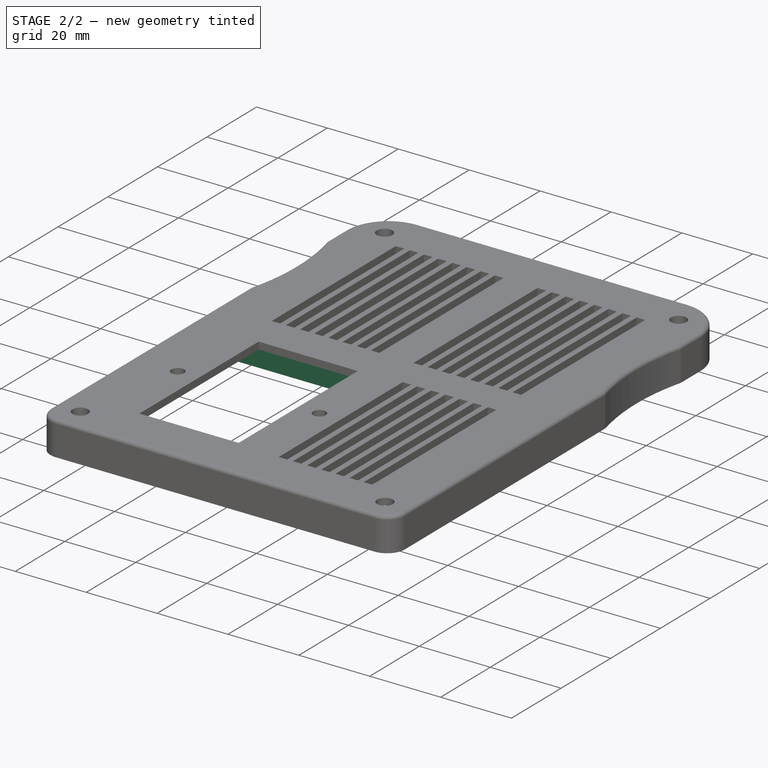
[diagram: stage 2 of 2 — iso view after this stage's code; geometry added in this stage tinted green]
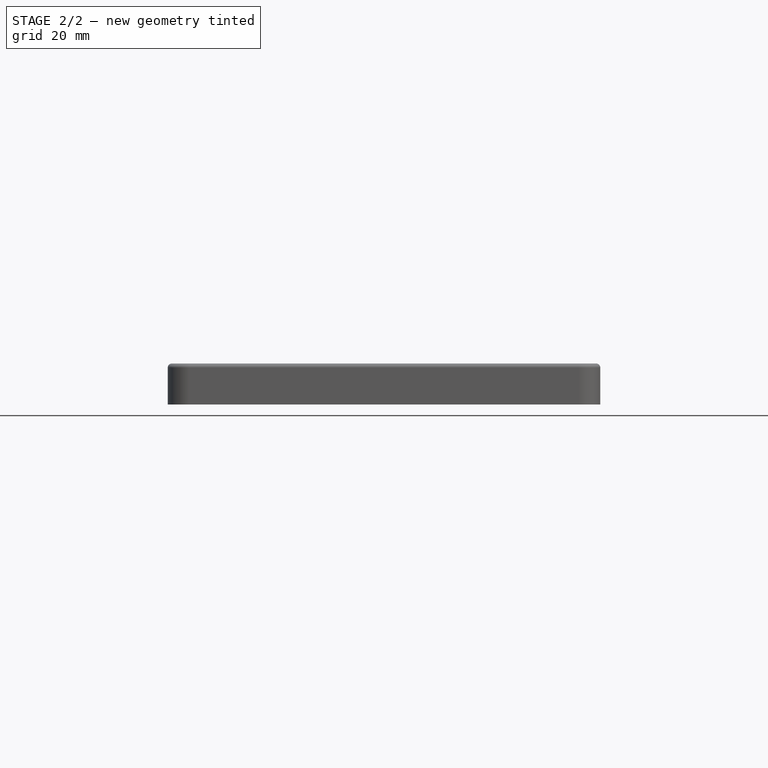
[diagram: stage 2 of 2 — front view after this stage's code; geometry added in this stage tinted green]
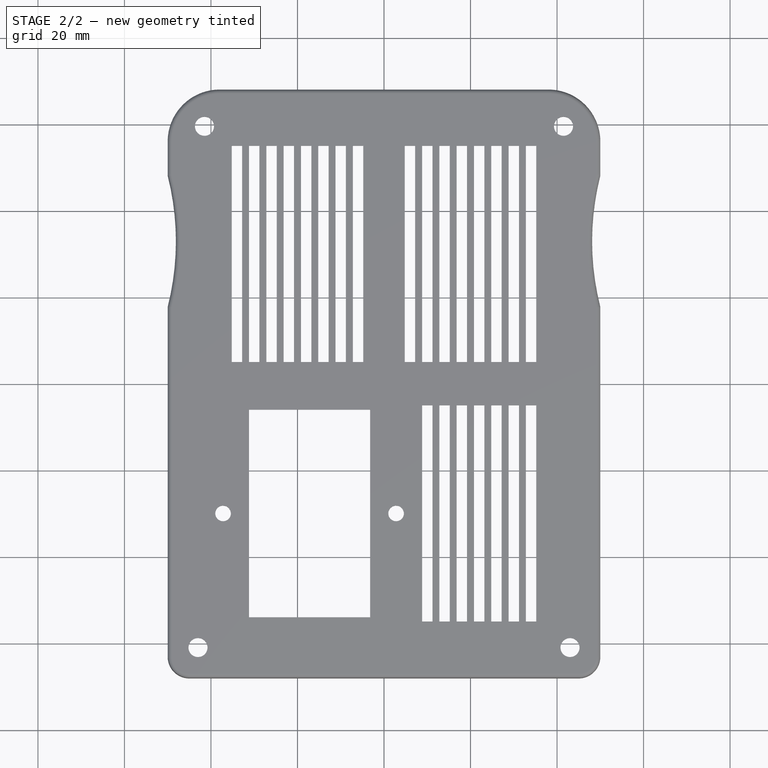
[diagram: stage 2 of 2 — top view after this stage's code; geometry added in this stage tinted green]
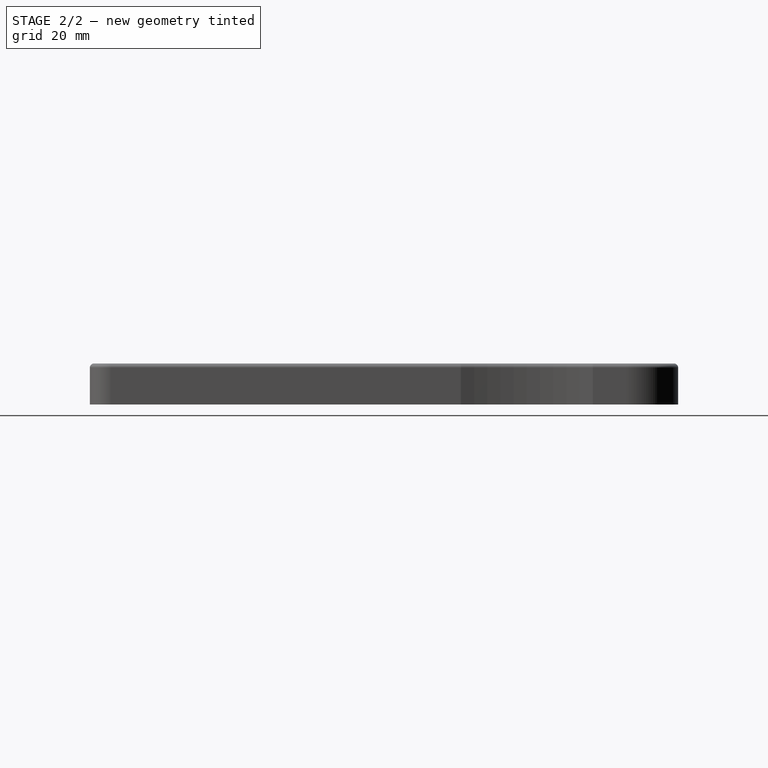
[diagram: stage 2 of 2 — right view after this stage's code; geometry added in this stage tinted green]
FEATURE [Sketcher::SketchObject] Sketch003
  ExternalGeometry = -> [Sketch,Sketch001]
  MapMode = 5
  Support = -> [XY_Plane]
  sketch-geometry (19):
    g0: LineSegment [constr] StartX=-1.42e-14 StartY=66 StartZ=0 EndX=-1.42e-14 EndY=-66 EndZ=0
    g1: LineSegment [constr] StartX=-48 StartY=7.3e-15 StartZ=0 EndX=48 EndY=7.3e-15 EndZ=0
    g2: LineSegment StartX=-44 StartY=1 StartZ=0 EndX=-1 EndY=1 EndZ=0
    g3: LineSegment StartX=44 StartY=1 StartZ=0 EndX=44 EndY=-1 EndZ=0
    g4: LineSegment StartX=44 StartY=-1 StartZ=0 EndX=3.8 EndY=-1 EndZ=0
    g5: LineSegment StartX=-44 StartY=-1 StartZ=0 EndX=-44 EndY=1 EndZ=0
    g6: LineSegment StartX=-1 StartY=62 StartZ=0 EndX=1 EndY=62 EndZ=0
    g7: LineSegment StartX=1 StartY=62 StartZ=0 EndX=1 EndY=1 EndZ=0
    g8: LineSegment StartX=-1 StartY=1 StartZ=0 EndX=-1 EndY=62 EndZ=0
    g9: LineSegment StartX=1 StartY=1 StartZ=0 EndX=44 EndY=1 EndZ=0
    g10: LineSegment [constr] StartX=2.8 StartY=-30 StartZ=0 EndX=2.8 EndY=7.1e-15 EndZ=0
    g11: LineSegment StartX=3.8 StartY=-26 StartZ=0 EndX=1.8 EndY=-26 EndZ=0
    g12: LineSegment StartX=1.8 StartY=-26 StartZ=0 EndX=1.8 EndY=-1 EndZ=0
    g13: LineSegment StartX=3.8 StartY=-1 StartZ=0 EndX=3.8 EndY=-26 EndZ=0
    g14: LineSegment StartX=1.8 StartY=-34 StartZ=0 EndX=3.8 EndY=-34 EndZ=0
    g15: LineSegment StartX=3.8 StartY=-34 StartZ=0 EndX=3.8 EndY=-62 EndZ=0
    g16: LineSegment StartX=3.8 StartY=-62 StartZ=0 EndX=1.8 EndY=-62 EndZ=0
    g17: LineSegment StartX=1.8 StartY=-62 StartZ=0 EndX=1.8 EndY=-34 EndZ=0
    g18: LineSegment StartX=1.8 StartY=-1 StartZ=0 EndX=-44 EndY=-1 EndZ=0
  constraints (50):
    c: PointOnObject(g0,g-5)
    c: PointOnObject(g1,g-3)
    c: PointOnObject(g1,g-4)
    c: Symmetric(g-5,g-5,g0)
    c: PointOnObject(g0,g-6)
    c: Symmetric(g0,g0,g1)
    c: Coincident(g9,g3)
    c: Coincident(g3,g4)
    c: Coincident(g18,g5)
    c: Coincident(g5,g2)
    c: Horizontal(g4)
    c: Vertical(g5)
    c: DistanceY(g3,g3) = 2
    c: Symmetric(g9,g3,g1)
    c: DistanceX(g1,g2) = 4
    c: Coincident(g6,g7)
    c: Coincident(g8,g6)
    c: Vertical(g7)
    c: Vertical(g8)
    c: Equal(g6,g3)
    c: Symmetric(g6,g6,g0)
    c: Coincident(g9,g7)
    c: Tangent(g2,g9)
    c: Coincident(g2,g8)
    c: Symmetric(g2,g3,g0)
    c: DistanceY(g6,g0) = 4
    c: Coincident(g10,g-7)
    c: PointOnObject(g10,g1)
    c: Coincident(g11,g12)
    c: Coincident(g13,g11)
    c: Horizontal(g11)
    c: Vertical(g12)
    c: Vertical(g13)
    c: Coincident(g14,g15)
    c: Coincident(g15,g16)
    c: Coincident(g16,g17)
    c: Coincident(g17,g14)
    c: Horizontal(g14)
    c: Horizontal(g16)
    c: Vertical(g15)
    c: Vertical(g17)
    c: Coincident(g18,g12)
    c: Tangent(g4,g18)
    c: Coincident(g4,g13)
    c: Symmetric(g12,g4,g10)
    c: Equal(g6,g11)
    c: Equal(g11,g14)
    c: Symmetric(g14,g11,g10)
    c: DistanceY(g-6,g16) = 4
    c: DistanceY(g14,g11) = 8
FEATURE [PartDesign::Pad] Pad002
  BaseFeature = -> Pad001
  Length = 7.5
  Length2 = 100
  Profile = -> Sketch003
  Reversed = true
  Type = 0
  expr: Length = Pad.Length
FEATURE [PartDesign::Fillet] Fillet
  Base = -> Pad002 [Edge57,Edge51,Edge54,Edge13,Edge1,Edge2,Edge164,Edge166,Edge460,Edge466,Edge448,Edge454]
  BaseFeature = -> Pad002
  Radius = 1
FEATURE [PartDesign::Body] Body
  Group = -> [Sketch,Sketch001,Sketch002,Pad,Pad001,Sketch003,Pad002,Fillet]
  Origin = -> Origin
  Tip = -> Fillet
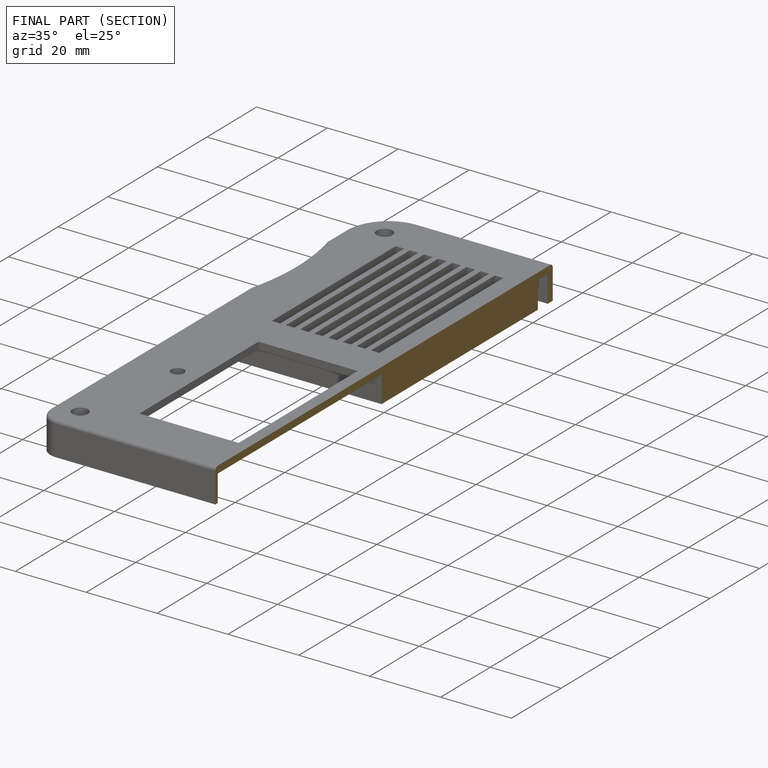
[diagram: finished part — half-section view (interior)]
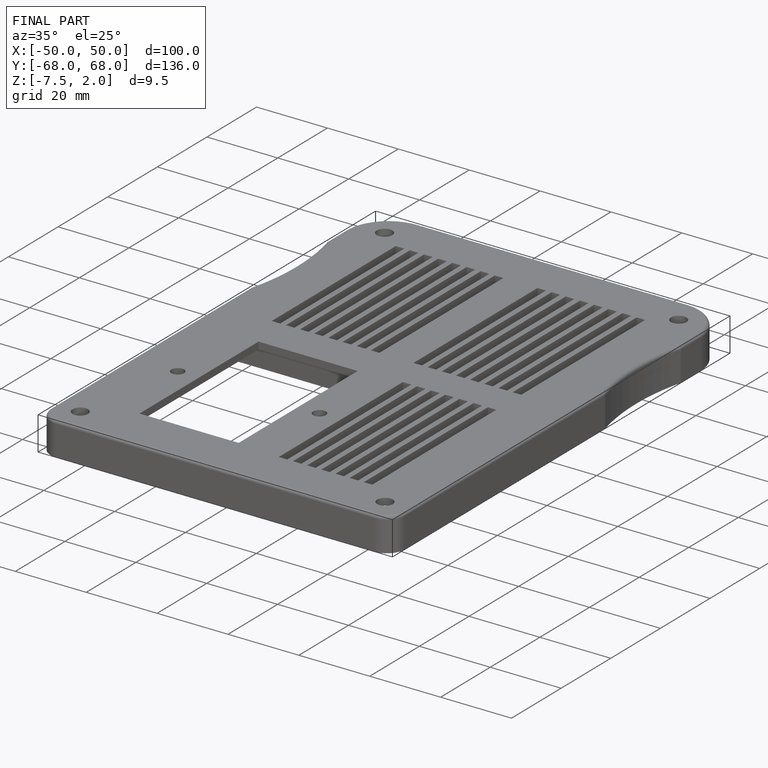
[diagram: finished part — iso view with bounding-box wireframe]
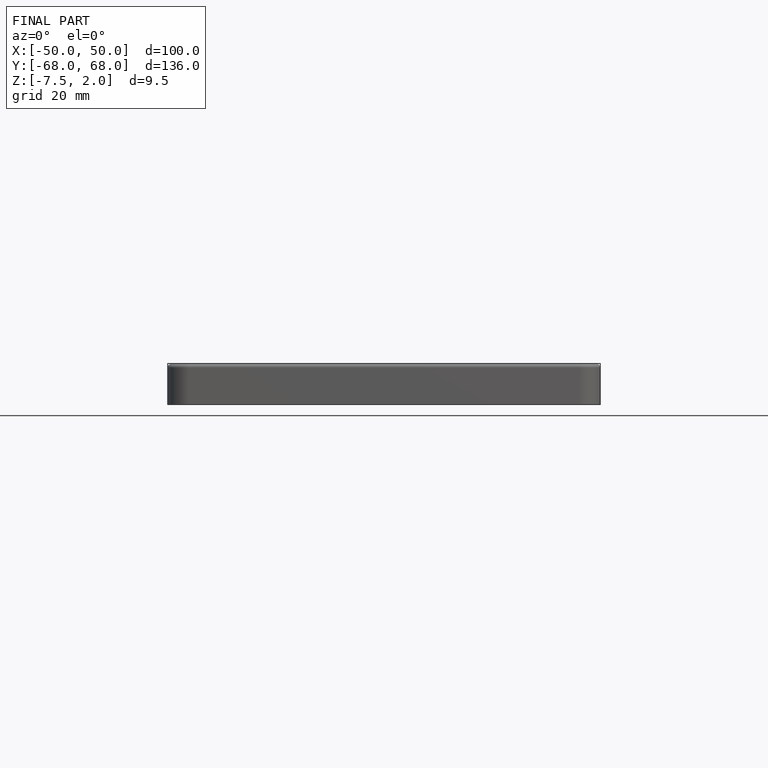
[diagram: finished part — front view with bounding-box wireframe]
